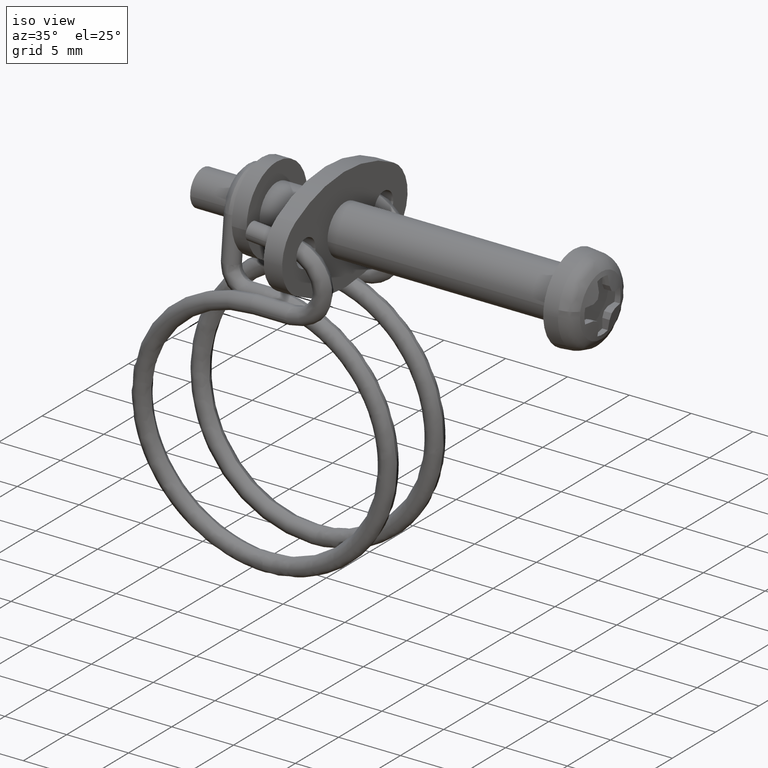
[diagram: clean part render]
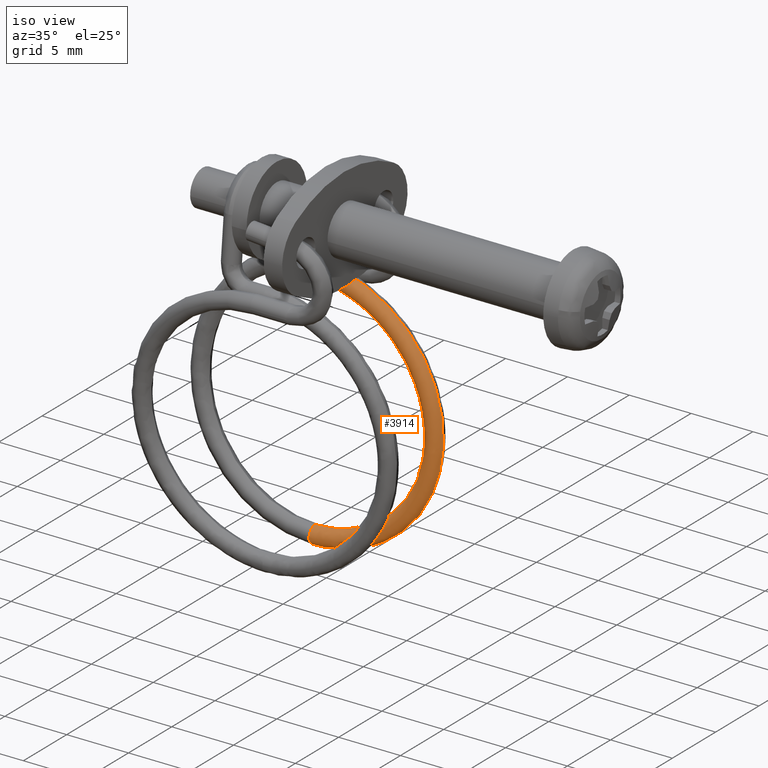
[diagram: same view with one face highlighted and labeled with its STEP entity id]
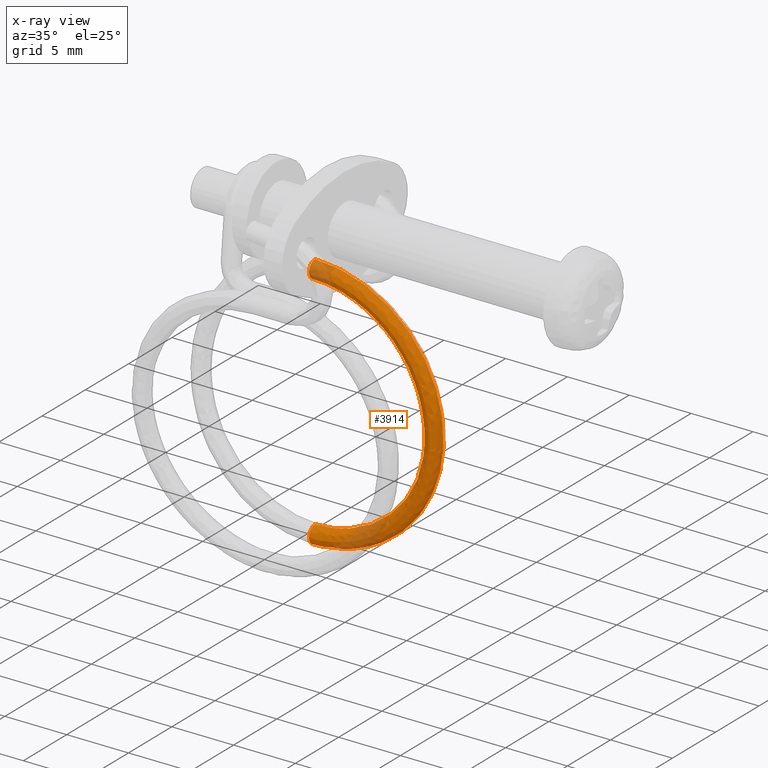
[diagram: x-ray of the same camera — body ghosted, the highlighted face saturated]
A machine part, iso view. The second image highlights one B-rep face of the part: STEP entity #3914.
The next image is the same camera in x-ray: the body ghosted, the highlighted face saturated — about 15% of this face is hidden behind the body in this view.
In plain terms, the highlighted face is a freeform B-spline surface patch.
Its self-contained STEP definition (entity closure, byte-faithful):
#3453=CARTESIAN_POINT('',(-22.799999895931261,2.699999999999000,-25.150000000016480));
#3454=VERTEX_POINT('',#3453);
#3472=CARTESIAN_POINT('',(-22.800000738930741,2.699999999998998,-23.750000000016460));
#3473=VERTEX_POINT('',#3472);
#3474=CARTESIAN_POINT('',(-22.799999895931261,2.699999999999000,-25.150000000016480));
#3475=CARTESIAN_POINT('',(-22.799999895931261,2.516740428539605,-25.150000000016480));
#3476=CARTESIAN_POINT('',(-22.799999941357591,2.334609338864722,-25.074558832543339));
#3477=CARTESIAN_POINT('',(-22.800000097413751,2.075441167472163,-24.815390661150769));
#3478=CARTESIAN_POINT('',(-22.800000207082629,1.999999999999036,-24.633259571475879));
#3479=CARTESIAN_POINT('',(-22.800000427779370,1.999999999999035,-24.266740428557050));
#3480=CARTESIAN_POINT('',(-22.800000537448241,2.075441167472162,-24.084609338882160));
#3481=CARTESIAN_POINT('',(-22.800000693504408,2.334609338864720,-23.825441167489590));
#3482=CARTESIAN_POINT('',(-22.800000738930741,2.516740428539602,-23.750000000016449));
#3483=CARTESIAN_POINT('',(-22.800000738930741,2.699999999998998,-23.750000000016460));
#3484=B_SPLINE_CURVE_WITH_KNOTS('',3,(#3474,#3475,#3476,#3477,#3478,#3479,#3480,#3481,#3482,#3483),.UNSPECIFIED.,.F.,.U.,(4,2,2,2,4),(0.500000000000000,0.625000000000000,0.750000000000000,0.875000000000000,1.0),.UNSPECIFIED.);
#3485=EDGE_CURVE('',#3454,#3473,#3484,.T.);
#3735=CARTESIAN_POINT('',(-22.800007992186320,2.699999999998991,-4.349999999989791));
#3736=VERTEX_POINT('',#3735);
#3737=CARTESIAN_POINT('',(-22.800007992186320,2.699999999998991,-4.349999999989791));
#3738=CARTESIAN_POINT('',(-22.374591539921880,2.699999999998993,-4.349994054321519));
#3739=CARTESIAN_POINT('',(-21.353574174094909,2.699999999998982,-4.412697938934061));
#3740=CARTESIAN_POINT('',(-19.870607184026252,2.699999999999006,-4.726616045852189));
#3741=CARTESIAN_POINT('',(-18.436458479282649,2.699999999998972,-5.274828720076889));
#3742=CARTESIAN_POINT('',(-17.201905617733040,2.699999999998998,-5.949383361559765));
#3743=CARTESIAN_POINT('',(-16.135399402971078,2.699999999999036,-6.730272259666065));
#3744=CARTESIAN_POINT('',(-15.067471696866260,2.699999999999012,-7.740755552318969));
#3745=CARTESIAN_POINT('',(-14.220223067527790,2.699999999998934,-8.812751013132704));
#3746=CARTESIAN_POINT('',(-13.605707061313190,2.699999999999085,-9.859867196797117));
#3747=CARTESIAN_POINT('',(-13.177968682985520,2.699999999998909,-10.764239338404050));
#3748=CARTESIAN_POINT('',(-12.761824738960700,2.699999999999024,-11.905019996763571));
#3749=CARTESIAN_POINT('',(-12.492757341632700,2.699999999999069,-13.157084332083620));
#3750=CARTESIAN_POINT('',(-12.380020033742960,2.699999999998774,-14.515206346244961));
#3751=CARTESIAN_POINT('',(-12.413372921994901,2.699999999999067,-15.601985604578511));
#3752=CARTESIAN_POINT('',(-12.596036199846980,2.699999999998965,-16.887810945375850));
#3753=CARTESIAN_POINT('',(-12.931557629973041,2.699999999998998,-18.145179049911349));
#3754=CARTESIAN_POINT('',(-13.553139059348259,2.699999999999069,-19.595239471530370));
#3755=CARTESIAN_POINT('',(-14.318313941922600,2.699999999998818,-20.828570037760031));
#3756=CARTESIAN_POINT('',(-15.083778183210640,2.699999999999061,-21.743906030293939));
#3757=CARTESIAN_POINT('',(-15.836182128482680,2.699999999998964,-22.496313965250788));
#3758=CARTESIAN_POINT('',(-16.805842813325722,2.699999999999027,-23.297161643803499));
#3759=CARTESIAN_POINT('',(-18.087713337711609,2.699999999998974,-24.065463389560868));
#3760=CARTESIAN_POINT('',(-19.467976936153701,2.699999999999038,-24.632200489439711));
#3761=CARTESIAN_POINT('',(-20.991984190875829,2.699999999998914,-25.038899157906361));
#3762=CARTESIAN_POINT('',(-22.119317331814401,2.699999999999061,-25.150093817175581));
#3763=CARTESIAN_POINT('',(-22.799999895931261,2.699999999999000,-25.150000000016480));
#3764=B_SPLINE_CURVE_WITH_KNOTS('',3,(#3737,#3738,#3739,#3740,#3741,#3742,#3743,#3744,#3745,#3746,#3747,#3748,#3749,#3750,#3751,#3752,#3753,#3754,#3755,#3756,#3757,#3758,#3759,#3760,#3761,#3762,#3763),.UNSPECIFIED.,.F.,.U.,(4,1,1,1,1,1,1,1,1,1,1,1,1,1,1,1,1,1,1,1,1,1,1,1,4),(0.000000024018426,1.276253329061102,3.063043498553579,4.530766388287617,5.870858332757209,7.274764767594157,8.487229634717824,10.274019877797270,11.358855517810911,12.124616574461619,13.273272747310211,14.996232556397370,15.953440363166591,17.357309613248962,18.250703975493600,19.846046964578239,21.249956187118752,22.972928550616370,24.185397903907312,24.823534658981689,26.163623646440531,27.950415452316960,29.290497013964991,30.630596534127079,32.672622739382653),.UNSPECIFIED.);
#3765=EDGE_CURVE('',#3736,#3454,#3764,.T.);
#3768=CARTESIAN_POINT('',(-22.800005826610910,2.699999999998991,-5.749999999991088));
#3769=VERTEX_POINT('',#3768);
#3770=CARTESIAN_POINT('',(-22.800005826610910,2.699999999998991,-5.749999999991088));
#3771=CARTESIAN_POINT('',(-22.174133866737211,2.699999999998988,-5.749893574187727));
#3772=CARTESIAN_POINT('',(-21.198574816754139,2.699999999998992,-5.852205116584763));
#3773=CARTESIAN_POINT('',(-19.846823057187208,2.699999999998988,-6.221829268831385));
#3774=CARTESIAN_POINT('',(-18.791134827659999,2.699999999999007,-6.662906955182711));
#3775=CARTESIAN_POINT('',(-17.851044405305341,2.699999999998969,-7.210822535335842));
#3776=CARTESIAN_POINT('',(-16.933232705473419,2.699999999998998,-7.891488907042418));
#3777=CARTESIAN_POINT('',(-16.201968131884779,2.699999999999007,-8.596322659057226));
#3778=CARTESIAN_POINT('',(-15.445142289075610,2.699999999998879,-9.524303925125272));
#3779=CARTESIAN_POINT('',(-14.911651521541650,2.699999999999283,-10.366773341152820));
#3780=CARTESIAN_POINT('',(-14.442021729686489,2.699999999998764,-11.367722502349039));
#3781=CARTESIAN_POINT('',(-14.115210479250811,2.699999999999122,-12.308268052585380));
#3782=CARTESIAN_POINT('',(-13.887256211212650,2.699999999998959,-13.353364352961330));
#3783=CARTESIAN_POINT('',(-13.792708139339920,2.699999999998999,-14.344563923955100));
#3784=CARTESIAN_POINT('',(-13.801363774942031,2.699999999998995,-15.284310095945390));
#3785=CARTESIAN_POINT('',(-13.908020422445439,2.699999999998994,-16.273942123537591));
#3786=CARTESIAN_POINT('',(-14.132271946825620,2.699999999999004,-17.244660129830560));
#3787=CARTESIAN_POINT('',(-14.464632854247990,2.699999999998990,-18.182585856640209));
#3788=CARTESIAN_POINT('',(-14.848300182412220,2.699999999998954,-19.000254031549780));
#3789=CARTESIAN_POINT('',(-15.467365241167631,2.699999999999192,-20.026078550903740));
#3790=CARTESIAN_POINT('',(-16.268022744780531,2.699999999998949,-20.995605627554351));
#3791=CARTESIAN_POINT('',(-17.235194367164109,2.699999999999005,-21.850724191462731));
#3792=CARTESIAN_POINT('',(-18.236564823490170,2.699999999998998,-22.542314068467348));
#3793=CARTESIAN_POINT('',(-19.376727841416528,2.699999999998997,-23.111856341605819));
#3794=CARTESIAN_POINT('',(-20.483954913501101,2.699999999998998,-23.466326418915379));
#3795=CARTESIAN_POINT('',(-21.603510967295890,2.699999999999000,-23.692598268509439));
#3796=CARTESIAN_POINT('',(-22.321402437715300,2.699999999998995,-23.750029375981690));
#3797=CARTESIAN_POINT('',(-22.800000738930741,2.699999999998998,-23.750000000016460));
#3798=B_SPLINE_CURVE_WITH_KNOTS('',3,(#3770,#3771,#3772,#3773,#3774,#3775,#3776,#3777,#3778,#3779,#3780,#3781,#3782,#3783,#3784,#3785,#3786,#3787,#3788,#3789,#3790,#3791,#3792,#3793,#3794,#3795,#3796,#3797),.UNSPECIFIED.,.F.,.U.,(4,1,1,1,1,1,1,1,1,1,1,1,1,1,1,1,1,1,1,1,1,1,1,1,1,4),(0.000000035287673,1.877587154311666,2.926827180425569,4.196979532013511,5.301446907433810,6.185022556073758,7.620836713392748,8.338743979376048,9.774557123615519,10.602902568937120,11.652159049494969,12.756615630068380,13.805873457826300,14.634191125977960,15.572993944592110,16.787903498866640,17.616254632542908,18.555050693465780,19.493852355407331,21.205788314634489,22.310257097243579,23.359507076520320,24.850535065932920,26.120673097261822,26.838593968332010,28.274384802228131),.UNSPECIFIED.);
#3799=EDGE_CURVE('',#3769,#3473,#3798,.T.);
#3834=CARTESIAN_POINT('',(-24.072752485535545,2.719569716383292,-5.840448882757009));
#3835=CARTESIAN_POINT('',(-13.734561881990658,2.719569716383293,-4.363611541141188));
#3836=CARTESIAN_POINT('',(-13.800177652241846,2.719569716383296,-14.806548295690138));
#3837=CARTESIAN_POINT('',(-13.865011929984421,2.719569716383301,-25.125108291262990));
#3838=CARTESIAN_POINT('',(-24.079040790553631,2.719569716383299,-23.658650551924357));
#3839=CARTESIAN_POINT('',(-24.072752485535560,2.709841842755523,-5.840448882757010));
#3840=CARTESIAN_POINT('',(-13.734561881990658,2.709841842755524,-4.363611541141187));
#3841=CARTESIAN_POINT('',(-13.800177652241837,2.709841842755526,-14.806548295690126));
#3842=CARTESIAN_POINT('',(-13.865011929984421,2.709841842755530,-25.125108291262990));
#3843=CARTESIAN_POINT('',(-24.079040790553631,2.709841842755529,-23.658650551924360));
#3844=CARTESIAN_POINT('',(-24.072752485535567,1.999999999999030,-5.840448882757013));
#3845=CARTESIAN_POINT('',(-13.734561881990656,1.999999999999029,-4.363611541141185));
#3846=CARTESIAN_POINT('',(-13.800177652241841,1.999999999999033,-14.806548295690131));
#3847=CARTESIAN_POINT('',(-13.865011929984417,1.999999999999036,-25.125108291262990));
#3848=CARTESIAN_POINT('',(-24.079040790553627,1.999999999999036,-23.658650551924367));
#3849=CARTESIAN_POINT('',(-24.171744345524314,1.999999999999029,-5.147483795861636));
#3850=CARTESIAN_POINT('',(-13.029472250594093,1.999999999999029,-3.555781327675909));
#3851=CARTESIAN_POINT('',(-13.100191469642590,1.999999999999032,-14.810946496466030));
#3852=CARTESIAN_POINT('',(-13.170068413431798,1.999999999999037,-25.932061158359701));
#3853=CARTESIAN_POINT('',(-24.178521740932670,1.999999999999036,-24.351545594850514));
#3854=CARTESIAN_POINT('',(-24.270736205513074,1.999999999999029,-4.454518708966264));
#3855=CARTESIAN_POINT('',(-12.324382619197531,1.999999999999029,-2.747951114210628));
#3856=CARTESIAN_POINT('',(-12.400205287043326,1.999999999999033,-14.815344697241921));
#3857=CARTESIAN_POINT('',(-12.475124896879173,1.999999999999037,-26.739014025456406));
#3858=CARTESIAN_POINT('',(-24.278002691311727,1.999999999999036,-25.044440637776649));
#3859=CARTESIAN_POINT('',(-24.270736205513064,2.709841842755523,-4.454518708966262));
#3860=CARTESIAN_POINT('',(-12.324382619197532,2.709841842755523,-2.747951114210628));
#3861=CARTESIAN_POINT('',(-12.400205287043326,2.709841842755528,-14.815344697241921));
#3862=CARTESIAN_POINT('',(-12.475124896879173,2.709841842755531,-26.739014025456424));
#3863=CARTESIAN_POINT('',(-24.278002691311720,2.709841842755530,-25.044440637776660));
#3864=CARTESIAN_POINT('',(-24.270736205513064,2.719569716383293,-4.454518708966263));
#3865=CARTESIAN_POINT('',(-12.324382619197532,2.719569716383292,-2.747951114210628));
#3866=CARTESIAN_POINT('',(-12.400205287043322,2.719569716383295,-14.815344697241908));
#3867=CARTESIAN_POINT('',(-12.475124896879171,2.719569716383300,-26.739014025456406));
#3868=CARTESIAN_POINT('',(-24.278002691311720,2.719569716383300,-25.044440637776656));
#3876=(BOUNDED_SURFACE()B_SPLINE_SURFACE(2,2,((#3834,#3839,#3844,#3849,#3854,#3859,#3864),(#3835,#3840,#3845,#3850,#3855,#3860,#3865),(#3836,#3841,#3846,#3851,#3856,#3861,#3866),(#3837,#3842,#3847,#3852,#3857,#3862,#3867),(#3838,#3843,#3848,#3853,#3858,#3863,#3868)),.UNSPECIFIED.,.F.,.F.,.U.)B_SPLINE_SURFACE_WITH_KNOTS((3,2,3),(3,1,2,1,3),(0.0,19.065573801738879,37.982974987996222),(0.0,0.023195959492894,1.182993934137508,2.342791908782122,2.365987868275015),.UNSPECIFIED.)GEOMETRIC_REPRESENTATION_ITEM()RATIONAL_B_SPLINE_SURFACE(((1.002386289529804,0.996582442886105,0.700586264057494,0.990778596242406,0.700586264057494,0.996582442886105,1.002386289529803),(0.657422907247313,0.653616408920697,0.459484994263299,0.649809910594081,0.459484994263299,0.653616408920697,0.657422907247313),(1.011715728752539,1.005857864376270,0.707106781186548,1.0,0.707106781186548,1.005857864376269,1.011715728752539),(0.660176377693819,0.656353936690835,0.461409445538680,0.652531495687851,0.461409445538680,0.656353936690835,0.660176377693819),(0.997066595519499,0.991293550063476,0.696868231806318,0.985520504607453,0.696868231806318,0.991293550063476,0.997066595519499)))REPRESENTATION_ITEM('')SURFACE());
#3877=ORIENTED_EDGE('',*,*,#3765,.F.);
#3878=CARTESIAN_POINT('',(-22.800006976154009,2.001305705898767,-5.007264962868364));
#3879=VERTEX_POINT('',#3878);
#3880=CARTESIAN_POINT('',(-22.800007992186320,2.699999999998991,-4.349999999989791));
#3881=CARTESIAN_POINT('',(-22.800007992384128,2.295854811564943,-4.349999999989671));
#3882=CARTESIAN_POINT('',(-22.800007451254078,2.093782217346836,-4.699999999989896));
#3883=CARTESIAN_POINT('',(-22.800007230558283,2.011368437196555,-4.842744854452861));
#3884=CARTESIAN_POINT('',(-22.800006976154009,2.001305705898767,-5.007264962868364));
#3892=(BOUNDED_CURVE()B_SPLINE_CURVE(2,(#3880,#3881,#3882,#3883,#3884),.UNSPECIFIED.,.F.,.U.)B_SPLINE_CURVE_WITH_KNOTS((3,2,3),(0.0,0.333333333333333,0.480995450486102),.UNSPECIFIED.)CURVE()GEOMETRIC_REPRESENTATION_ITEM()RATIONAL_B_SPLINE_CURVE((1.0,0.866025403784439,1.0,0.940651082434369,0.933883685779535))REPRESENTATION_ITEM(''));
#3893=EDGE_CURVE('',#3736,#3879,#3892,.T.);
#3894=ORIENTED_EDGE('',*,*,#3893,.T.);
#3895=CARTESIAN_POINT('',(-22.800006976154009,2.001305705898767,-5.007264962868364));
#3896=CARTESIAN_POINT('',(-22.800006650786866,1.988443884256751,-5.217548655094815));
#3897=CARTESIAN_POINT('',(-22.800006368433021,2.093782217347065,-5.399999999990580));
#3898=CARTESIAN_POINT('',(-22.800005826788080,2.295854811565097,-5.749999999991015));
#3899=CARTESIAN_POINT('',(-22.800005826610910,2.699999999998991,-5.749999999991088));
#3907=(BOUNDED_CURVE()B_SPLINE_CURVE(2,(#3895,#3896,#3897,#3898,#3899),.UNSPECIFIED.,.F.,.U.)B_SPLINE_CURVE_WITH_KNOTS((3,2,3),(0.480995450486102,0.666666666666667,1.0),.UNSPECIFIED.)CURVE()GEOMETRIC_REPRESENTATION_ITEM()RATIONAL_B_SPLINE_CURVE((0.933883685779535,0.925374321350070,1.0,0.866025403784439,1.0))REPRESENTATION_ITEM(''));
#3908=EDGE_CURVE('',#3879,#3769,#3907,.T.);
#3909=ORIENTED_EDGE('',*,*,#3908,.T.);
#3910=ORIENTED_EDGE('',*,*,#3799,.T.);
#3911=ORIENTED_EDGE('',*,*,#3485,.F.);
#3912=EDGE_LOOP('',(#3877,#3894,#3909,#3910,#3911));
#3913=FACE_OUTER_BOUND('',#3912,.T.);
#3914=ADVANCED_FACE('',(#3913),#3876,.T.);